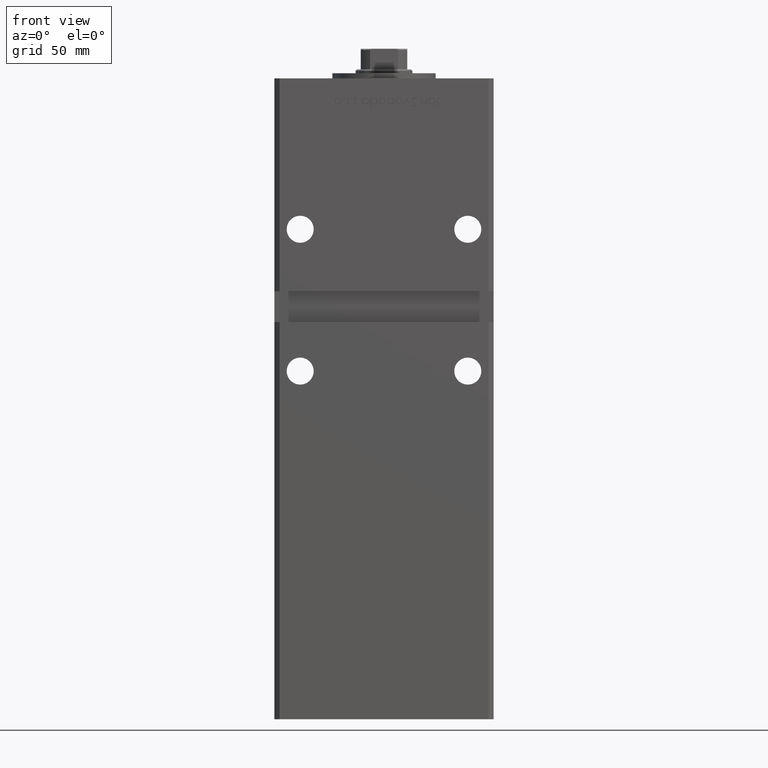
[diagram: clean part render]
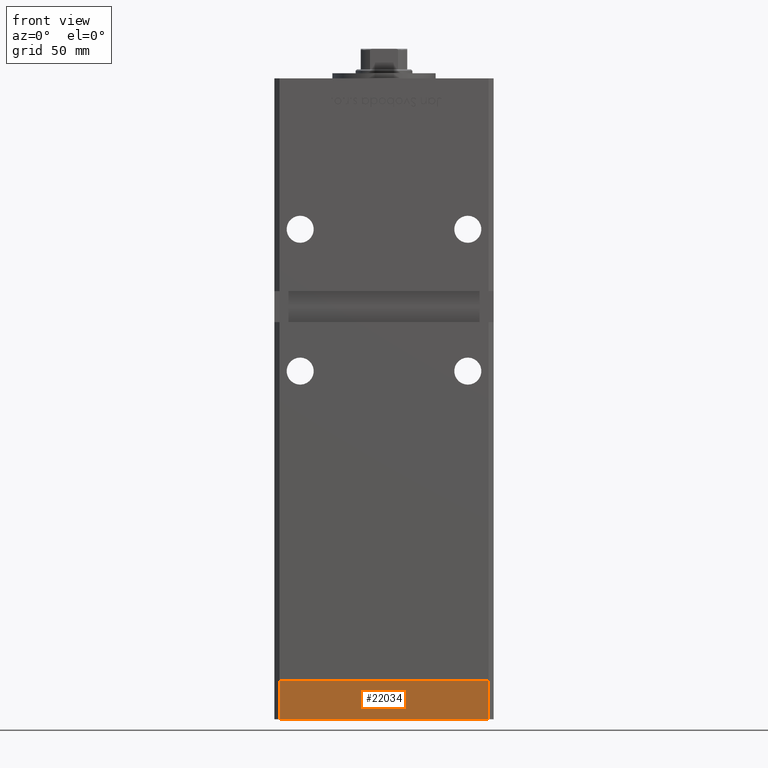
[diagram: same view with one face highlighted and labeled with its STEP entity id]
A machine part, front view. The second image highlights one B-rep face of the part: STEP entity #22034.
In plain terms, the highlighted planar face has unit normal (0, -1, -0).
Its self-contained STEP definition (entity closure, byte-faithful):
#1365 = VECTOR ( 'NONE', #15628, 1000.000000000000000 ) ;
#3776 = CARTESIAN_POINT ( 'NONE',  ( -40.49999999999999289, -37.50000000000002132, -15.00000000000000000 ) ) ;
#5958 = CARTESIAN_POINT ( 'NONE',  ( -40.49999999999999289, -37.50000000000002132, -15.00000000000000000 ) ) ;
#8333 = VERTEX_POINT ( 'NONE', #25727 ) ;
#10009 = DIRECTION ( 'NONE',  ( 1.000000000000000000, 1.713307136767217096E-16, 0.000000000000000000 ) ) ;
#14041 = PLANE ( 'NONE',  #48767 ) ;
#14442 = EDGE_CURVE ( 'NONE', #44890, #47767, #44646, .T. ) ;
#15628 = DIRECTION ( 'NONE',  ( 1.000000000000000000, 1.713307136767217096E-16, 0.000000000000000000 ) ) ;
#15654 = CARTESIAN_POINT ( 'NONE',  ( 40.50000000000000000, -37.50000000000000711, -15.00000000000000000 ) ) ;
#15705 = EDGE_CURVE ( 'NONE', #8333, #35771, #44326, .T. ) ;
#22034 = ADVANCED_FACE ( 'NONE', ( #50875 ), #14041, .T. ) ;
#22481 = ORIENTED_EDGE ( 'NONE', *, *, #15705, .F. ) ;
#22771 = VECTOR ( 'NONE', #48428, 1000.000000000000000 ) ;
#23685 = CARTESIAN_POINT ( 'NONE',  ( -40.49999999999999289, -37.50000000000002132, -15.00000000000000000 ) ) ;
#24750 = LINE ( 'NONE', #3776, #22771 ) ;
#25727 = CARTESIAN_POINT ( 'NONE',  ( -40.49999999999999289, -37.50000000000002132, 0.000000000000000000 ) ) ;
#26284 = ORIENTED_EDGE ( 'NONE', *, *, #26903, .T. ) ;
#26903 = EDGE_CURVE ( 'NONE', #47767, #35771, #45463, .T. ) ;
#28278 = VECTOR ( 'NONE', #41702, 1000.000000000000000 ) ;
#30052 = ORIENTED_EDGE ( 'NONE', *, *, #14442, .T. ) ;
#30435 = CARTESIAN_POINT ( 'NONE',  ( -40.49999999999999289, -37.50000000000002132, -15.00000000000000000 ) ) ;
#35771 = VERTEX_POINT ( 'NONE', #49094 ) ;
#36041 = EDGE_LOOP ( 'NONE', ( #22481, #44795, #30052, #26284 ) ) ;
#36245 = CARTESIAN_POINT ( 'NONE',  ( -40.49999999999999289, -37.50000000000002132, 0.000000000000000000 ) ) ;
#37931 = CARTESIAN_POINT ( 'NONE',  ( 40.50000000000000000, -37.50000000000000711, -15.00000000000000000 ) ) ;
#38211 = EDGE_CURVE ( 'NONE', #44890, #8333, #24750, .T. ) ;
#41702 = DIRECTION ( 'NONE',  ( 0.000000000000000000, 0.000000000000000000, 1.000000000000000000 ) ) ;
#44326 = LINE ( 'NONE', #36245, #47762 ) ;
#44646 = LINE ( 'NONE', #23685, #1365 ) ;
#44795 = ORIENTED_EDGE ( 'NONE', *, *, #38211, .F. ) ;
#44890 = VERTEX_POINT ( 'NONE', #5958 ) ;
#45463 = LINE ( 'NONE', #37931, #28278 ) ;
#46843 = DIRECTION ( 'NONE',  ( 1.713307136767217096E-16, -1.000000000000000000, 0.000000000000000000 ) ) ;
#47762 = VECTOR ( 'NONE', #48873, 1000.000000000000000 ) ;
#47767 = VERTEX_POINT ( 'NONE', #15654 ) ;
#48428 = DIRECTION ( 'NONE',  ( 0.000000000000000000, 0.000000000000000000, 1.000000000000000000 ) ) ;
#48767 = AXIS2_PLACEMENT_3D ( 'NONE', #30435, #46843, #10009 ) ;
#48873 = DIRECTION ( 'NONE',  ( 1.000000000000000000, 1.713307136767217096E-16, 0.000000000000000000 ) ) ;
#49094 = CARTESIAN_POINT ( 'NONE',  ( 40.50000000000000000, -37.50000000000000711, 0.000000000000000000 ) ) ;
#50875 = FACE_OUTER_BOUND ( 'NONE', #36041, .T. ) ;